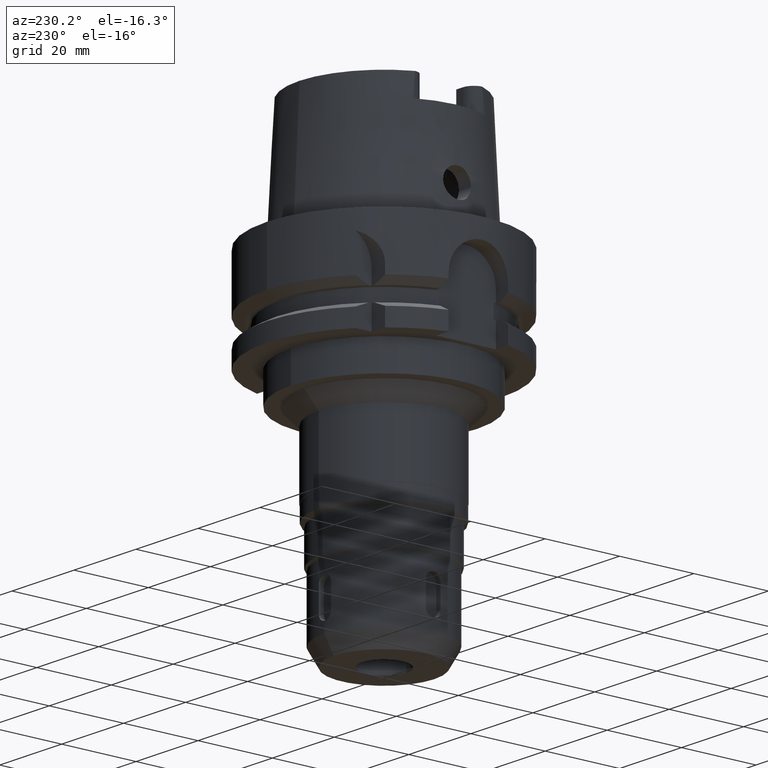
[diagram: clean part render]
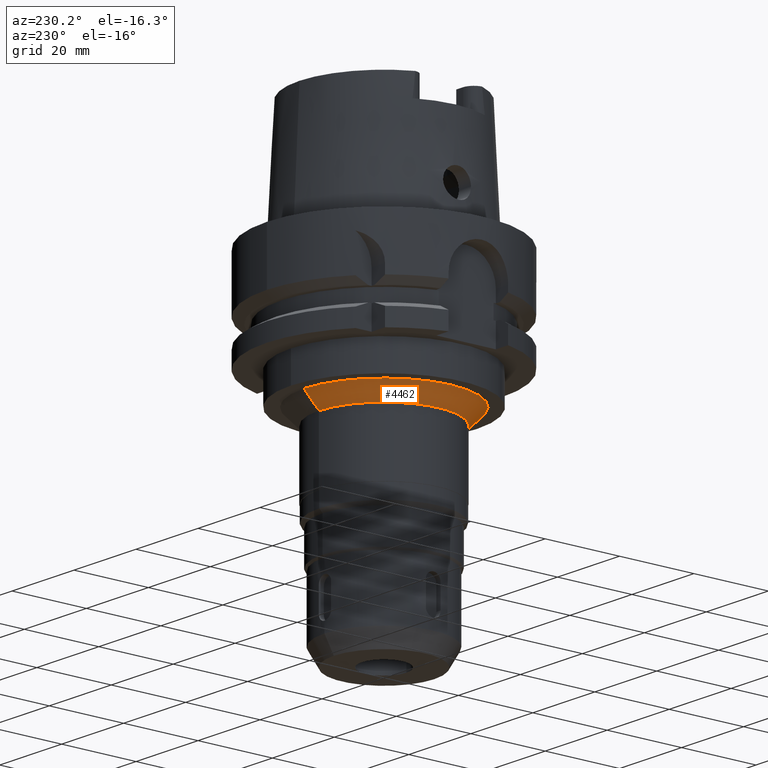
[diagram: same view with one face highlighted and labeled with its STEP entity id]
A machine part, auxiliary view. The second image highlights one B-rep face of the part: STEP entity #4462.
In plain terms, the highlighted conical surface has half-angle 45 deg.
Its self-contained STEP definition (entity closure, byte-faithful):
#1464=DIRECTION('',(0.E0,7.071067811865E-1,-7.071067811865E-1));
#1465=VECTOR('',#1464,5.656854249492E0);
#1466=CARTESIAN_POINT('',(0.E0,-2.15E1,-3.4E1));
#1467=LINE('',#1466,#1465);
#1471=CARTESIAN_POINT('',(0.E0,0.E0,-3.8E1));
#1472=DIRECTION('',(0.E0,0.E0,-1.E0));
#1473=DIRECTION('',(0.E0,-1.E0,0.E0));
#1474=AXIS2_PLACEMENT_3D('',#1471,#1472,#1473);
#1479=DIRECTION('',(0.E0,-7.071067811865E-1,-7.071067811865E-1));
#1480=VECTOR('',#1479,5.656854249492E0);
#1481=CARTESIAN_POINT('',(0.E0,2.15E1,-3.4E1));
#1482=LINE('',#1481,#1480);
#1510=CARTESIAN_POINT('',(0.E0,0.E0,-3.4E1));
#1511=DIRECTION('',(0.E0,0.E0,-1.E0));
#1512=DIRECTION('',(0.E0,-1.E0,0.E0));
#1513=AXIS2_PLACEMENT_3D('',#1510,#1511,#1512);
#3196=CARTESIAN_POINT('',(0.E0,1.75E1,-3.8E1));
#3197=VERTEX_POINT('',#3196);
#3198=CARTESIAN_POINT('',(0.E0,-1.75E1,-3.8E1));
#3199=VERTEX_POINT('',#3198);
#3200=CARTESIAN_POINT('',(0.E0,2.15E1,-3.4E1));
#3201=VERTEX_POINT('',#3200);
#3202=CARTESIAN_POINT('',(0.E0,-2.15E1,-3.4E1));
#3203=VERTEX_POINT('',#3202);
#4448=CARTESIAN_POINT('',(0.E0,0.E0,-3.6E1));
#4449=DIRECTION('',(0.E0,0.E0,1.E0));
#4450=DIRECTION('',(0.E0,1.E0,0.E0));
#4451=AXIS2_PLACEMENT_3D('',#4448,#4449,#4450);
#4452=CONICAL_SURFACE('',#4451,1.95E1,4.5E1);
#4454=ORIENTED_EDGE('',*,*,#4453,.F.);
#4456=ORIENTED_EDGE('',*,*,#4455,.F.);
#4458=ORIENTED_EDGE('',*,*,#4457,.T.);
#4459=ORIENTED_EDGE('',*,*,#4441,.T.);
#4460=EDGE_LOOP('',(#4454,#4456,#4458,#4459));
#4461=FACE_OUTER_BOUND('',#4460,.F.);
#1475=CIRCLE('',#1474,1.75E1);
#1514=CIRCLE('',#1513,2.15E1);
#4441=EDGE_CURVE('',#3199,#3197,#1475,.T.);
#4453=EDGE_CURVE('',#3201,#3197,#1482,.T.);
#4455=EDGE_CURVE('',#3203,#3201,#1514,.T.);
#4457=EDGE_CURVE('',#3203,#3199,#1467,.T.);
#4462=ADVANCED_FACE('',(#4461),#4452,.T.);